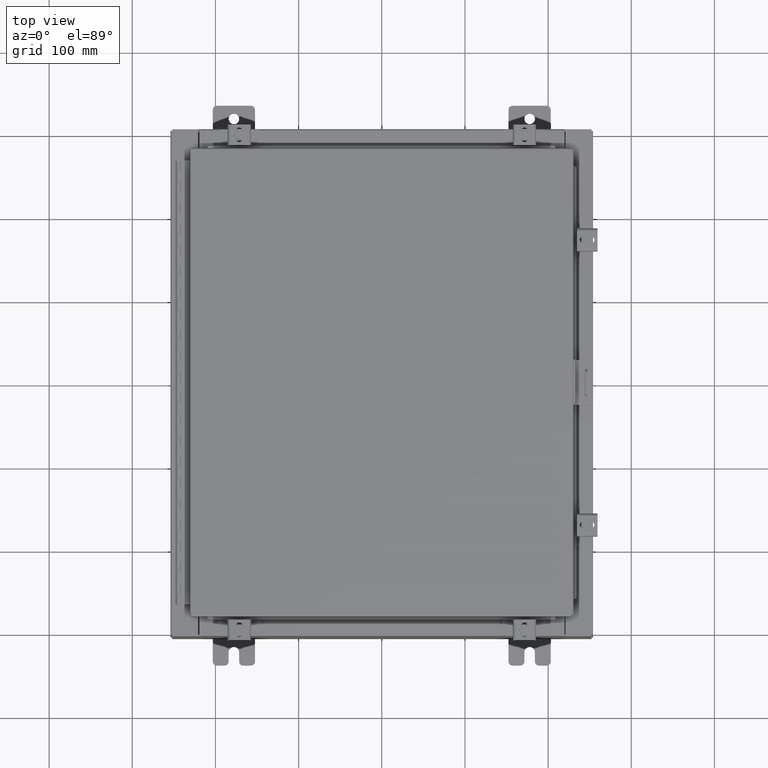
[diagram: clean part render]
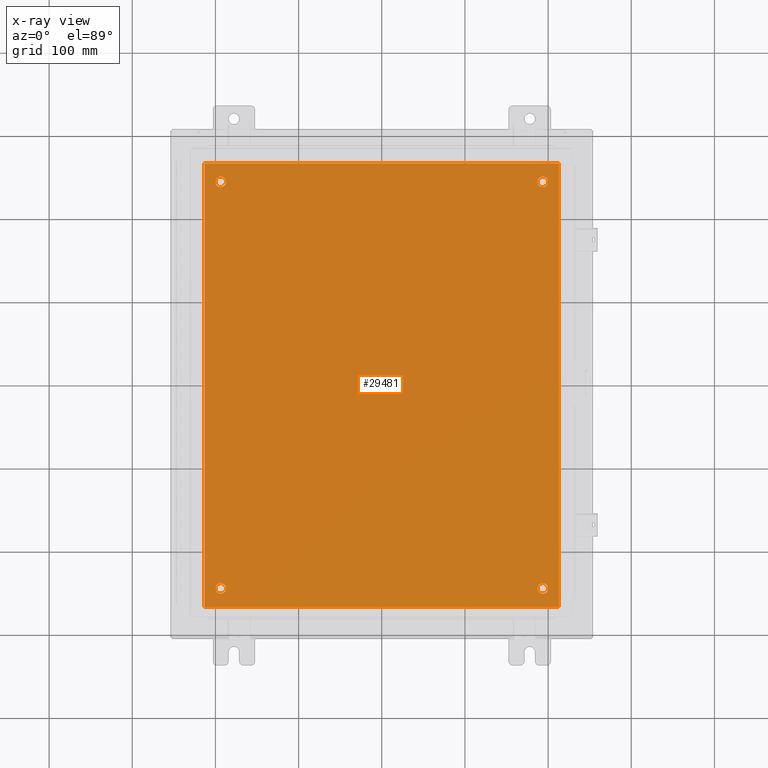
[diagram: x-ray — body ghosted, one internal face saturated and labeled with its STEP entity id]
A machine part, top view, then the same camera in x-ray: the body is ghosted and one INTERNAL B-rep face — a face not visible from any outside direction — is saturated and labeled: STEP entity #29481.
In plain terms, the highlighted planar face has unit normal (0, 0, -1).
Its self-contained STEP definition (entity closure, byte-faithful):
#547 = FACE_BOUND ( 'NONE', #3394, .T. ) ;
#1246 = PLANE ( 'NONE',  #13418 ) ;
#1336 = ORIENTED_EDGE ( 'NONE', *, *, #13790, .F. ) ;
#1374 = AXIS2_PLACEMENT_3D ( 'NONE', #28744, #13482, #31301 ) ;
#2328 = CARTESIAN_POINT ( 'NONE',  ( -7.625000000000004400, 9.625000000000001800, -0.1040000000000000400 ) ) ;
#2372 = CARTESIAN_POINT ( 'NONE',  ( 7.375000000000005300, -9.625000000000001800, -0.1040000000000000400 ) ) ;
#2544 = DIRECTION ( 'NONE',  ( -0.0000000000000000000, -0.0000000000000000000, 1.000000000000000000 ) ) ;
#3394 = EDGE_LOOP ( 'NONE', ( #8944, #23170 ) ) ;
#3687 = CARTESIAN_POINT ( 'NONE',  ( 0.0000000000000000000, 0.0000000000000000000, -0.1040000000000000400 ) ) ;
#3788 = DIRECTION ( 'NONE',  ( -1.000000000000000000, 0.0000000000000000000, -0.0000000000000000000 ) ) ;
#3878 = EDGE_CURVE ( 'NONE', #5645, #16554, #30451, .T. ) ;
#3926 = CARTESIAN_POINT ( 'NONE',  ( -8.383000000000002700, -10.50000000000000000, -0.1039999999999997600 ) ) ;
#4777 = CARTESIAN_POINT ( 'NONE',  ( -8.383000000000002700, 10.50000000000000200, -0.1039999999999997600 ) ) ;
#4885 = DIRECTION ( 'NONE',  ( -1.000000000000000000, 0.0000000000000000000, 0.0000000000000000000 ) ) ;
#5252 = EDGE_CURVE ( 'NONE', #5933, #9729, #12449, .T. ) ;
#5645 = VERTEX_POINT ( 'NONE', #11810 ) ;
#5715 = CIRCLE ( 'NONE', #24928, 0.2499999999999998100 ) ;
#5933 = VERTEX_POINT ( 'NONE', #10941 ) ;
#6685 = DIRECTION ( 'NONE',  ( -0.0000000000000000000, -0.0000000000000000000, 1.000000000000000000 ) ) ;
#6854 = AXIS2_PLACEMENT_3D ( 'NONE', #23687, #8474, #26271 ) ;
#7285 = FACE_BOUND ( 'NONE', #17812, .T. ) ;
#7425 = VERTEX_POINT ( 'NONE', #13039 ) ;
#8418 = EDGE_CURVE ( 'NONE', #20146, #19325, #11082, .T. ) ;
#8474 = DIRECTION ( 'NONE',  ( -0.0000000000000000000, -0.0000000000000000000, 1.000000000000000000 ) ) ;
#8578 = AXIS2_PLACEMENT_3D ( 'NONE', #17758, #2544, #20300 ) ;
#8638 = VECTOR ( 'NONE', #20438, 39.37007874015748100 ) ;
#8675 = CARTESIAN_POINT ( 'NONE',  ( -7.625000000000004400, -9.625000000000001800, -0.1040000000000000400 ) ) ;
#8944 = ORIENTED_EDGE ( 'NONE', *, *, #16592, .T. ) ;
#9069 = CARTESIAN_POINT ( 'NONE',  ( -7.625000000000004400, -9.625000000000001800, -0.1040000000000000400 ) ) ;
#9129 = DIRECTION ( 'NONE',  ( -0.0000000000000000000, -0.0000000000000000000, 1.000000000000000000 ) ) ;
#9665 = EDGE_LOOP ( 'NONE', ( #19682, #17057 ) ) ;
#9729 = VERTEX_POINT ( 'NONE', #2372 ) ;
#10376 = EDGE_CURVE ( 'NONE', #16554, #5645, #26922, .T. ) ;
#10941 = CARTESIAN_POINT ( 'NONE',  ( 7.875000000000002700, -9.625000000000001800, -0.1040000000000000400 ) ) ;
#11082 = LINE ( 'NONE', #11848, #30580 ) ;
#11224 = DIRECTION ( 'NONE',  ( -1.000000000000000000, 0.0000000000000000000, 0.0000000000000000000 ) ) ;
#11522 = ORIENTED_EDGE ( 'NONE', *, *, #3878, .T. ) ;
#11596 = DIRECTION ( 'NONE',  ( -1.000000000000000000, 0.0000000000000000000, 0.0000000000000000000 ) ) ;
#11810 = CARTESIAN_POINT ( 'NONE',  ( -7.375000000000004400, -9.625000000000001800, -0.1040000000000000400 ) ) ;
#11848 = CARTESIAN_POINT ( 'NONE',  ( -8.383000000000002700, 10.50000000000000400, -0.1039999999999997600 ) ) ;
#11945 = CIRCLE ( 'NONE', #6854, 0.2499999999999987000 ) ;
#12226 = DIRECTION ( 'NONE',  ( 0.0000000000000000000, 1.000000000000000000, 0.0000000000000000000 ) ) ;
#12382 = AXIS2_PLACEMENT_3D ( 'NONE', #2328, #20090, #4885 ) ;
#12449 = CIRCLE ( 'NONE', #8578, 0.2499999999999987000 ) ;
#12555 = EDGE_CURVE ( 'NONE', #7425, #21899, #26765, .T. ) ;
#12625 = VECTOR ( 'NONE', #12226, 39.37007874015748100 ) ;
#13039 = CARTESIAN_POINT ( 'NONE',  ( -7.375000000000004400, 9.625000000000001800, -0.1040000000000000400 ) ) ;
#13418 = AXIS2_PLACEMENT_3D ( 'NONE', #3687, #19001, #3788 ) ;
#13482 = DIRECTION ( 'NONE',  ( -0.0000000000000000000, -0.0000000000000000000, 1.000000000000000000 ) ) ;
#13790 = EDGE_CURVE ( 'NONE', #19325, #17946, #32253, .T. ) ;
#14481 = CARTESIAN_POINT ( 'NONE',  ( 8.382999999999999100, 10.50000000000000200, -0.1040000000000000400 ) ) ;
#14730 = CARTESIAN_POINT ( 'NONE',  ( 8.382999999999999100, -10.50000000000000000, -0.1040000000000000400 ) ) ;
#14780 = CARTESIAN_POINT ( 'NONE',  ( 8.382999999999999100, -10.50000000000000200, -0.1039999999999997600 ) ) ;
#15333 = CARTESIAN_POINT ( 'NONE',  ( -8.500000000000001800, 10.50000000000000200, -0.1040000000000000400 ) ) ;
#16554 = VERTEX_POINT ( 'NONE', #25947 ) ;
#16592 = EDGE_CURVE ( 'NONE', #23618, #25790, #24552, .T. ) ;
#16775 = ORIENTED_EDGE ( 'NONE', *, *, #10376, .T. ) ;
#17057 = ORIENTED_EDGE ( 'NONE', *, *, #29041, .T. ) ;
#17449 = AXIS2_PLACEMENT_3D ( 'NONE', #8675, #26473, #11224 ) ;
#17758 = CARTESIAN_POINT ( 'NONE',  ( 7.625000000000004400, -9.625000000000001800, -0.1040000000000000400 ) ) ;
#17812 = EDGE_LOOP ( 'NONE', ( #11522, #16775 ) ) ;
#17946 = VERTEX_POINT ( 'NONE', #14730 ) ;
#19001 = DIRECTION ( 'NONE',  ( 0.0000000000000000000, 0.0000000000000000000, -1.000000000000000000 ) ) ;
#19325 = VERTEX_POINT ( 'NONE', #3926 ) ;
#19376 = LINE ( 'NONE', #14780, #12625 ) ;
#19490 = ORIENTED_EDGE ( 'NONE', *, *, #8418, .F. ) ;
#19682 = ORIENTED_EDGE ( 'NONE', *, *, #12555, .T. ) ;
#20090 = DIRECTION ( 'NONE',  ( -0.0000000000000000000, -0.0000000000000000000, 1.000000000000000000 ) ) ;
#20146 = VERTEX_POINT ( 'NONE', #4777 ) ;
#20300 = DIRECTION ( 'NONE',  ( -1.000000000000000000, 0.0000000000000000000, 0.0000000000000000000 ) ) ;
#20438 = DIRECTION ( 'NONE',  ( -1.000000000000000000, -0.0000000000000000000, -0.0000000000000000000 ) ) ;
#20730 = ORIENTED_EDGE ( 'NONE', *, *, #30744, .T. ) ;
#21380 = LINE ( 'NONE', #15333, #8638 ) ;
#21600 = FACE_BOUND ( 'NONE', #9665, .T. ) ;
#21899 = VERTEX_POINT ( 'NONE', #31858 ) ;
#21903 = CARTESIAN_POINT ( 'NONE',  ( -7.625000000000004400, 9.625000000000001800, -0.1040000000000000400 ) ) ;
#21968 = VERTEX_POINT ( 'NONE', #14481 ) ;
#23170 = ORIENTED_EDGE ( 'NONE', *, *, #30906, .T. ) ;
#23618 = VERTEX_POINT ( 'NONE', #31749 ) ;
#23687 = CARTESIAN_POINT ( 'NONE',  ( 7.625000000000004400, -9.625000000000001800, -0.1040000000000000400 ) ) ;
#24185 = ORIENTED_EDGE ( 'NONE', *, *, #5252, .T. ) ;
#24335 = CARTESIAN_POINT ( 'NONE',  ( 7.625000000000004400, 9.625000000000001800, -0.1040000000000000400 ) ) ;
#24450 = DIRECTION ( 'NONE',  ( -1.000000000000000000, 0.0000000000000000000, 0.0000000000000000000 ) ) ;
#24552 = CIRCLE ( 'NONE', #1374, 0.2499999999999987000 ) ;
#24578 = EDGE_CURVE ( 'NONE', #17946, #21968, #19376, .T. ) ;
#24730 = EDGE_CURVE ( 'NONE', #21968, #20146, #21380, .T. ) ;
#24928 = AXIS2_PLACEMENT_3D ( 'NONE', #21903, #6685, #24450 ) ;
#25170 = CARTESIAN_POINT ( 'NONE',  ( 7.375000000000005300, 9.625000000000001800, -0.1040000000000000400 ) ) ;
#25238 = ORIENTED_EDGE ( 'NONE', *, *, #24730, .F. ) ;
#25474 = VECTOR ( 'NONE', #32040, 39.37007874015748100 ) ;
#25606 = AXIS2_PLACEMENT_3D ( 'NONE', #24335, #9129, #26924 ) ;
#25790 = VERTEX_POINT ( 'NONE', #25170 ) ;
#25947 = CARTESIAN_POINT ( 'NONE',  ( -7.875000000000003600, -9.625000000000001800, -0.1040000000000000400 ) ) ;
#26271 = DIRECTION ( 'NONE',  ( -1.000000000000000000, 0.0000000000000000000, 0.0000000000000000000 ) ) ;
#26473 = DIRECTION ( 'NONE',  ( -0.0000000000000000000, -0.0000000000000000000, 1.000000000000000000 ) ) ;
#26514 = EDGE_LOOP ( 'NONE', ( #24185, #20730 ) ) ;
#26674 = CIRCLE ( 'NONE', #25606, 0.2499999999999987000 ) ;
#26765 = CIRCLE ( 'NONE', #12382, 0.2499999999999998100 ) ;
#26773 = FACE_OUTER_BOUND ( 'NONE', #29727, .T. ) ;
#26867 = DIRECTION ( 'NONE',  ( -0.0000000000000000000, -0.0000000000000000000, 1.000000000000000000 ) ) ;
#26922 = CIRCLE ( 'NONE', #17449, 0.2499999999999998100 ) ;
#26923 = CARTESIAN_POINT ( 'NONE',  ( -8.500000000000001800, -10.50000000000000000, -0.1040000000000000400 ) ) ;
#26924 = DIRECTION ( 'NONE',  ( -1.000000000000000000, 0.0000000000000000000, 0.0000000000000000000 ) ) ;
#27115 = DIRECTION ( 'NONE',  ( 0.0000000000000000000, -1.000000000000000000, 0.0000000000000000000 ) ) ;
#27581 = FACE_BOUND ( 'NONE', #26514, .T. ) ;
#27734 = AXIS2_PLACEMENT_3D ( 'NONE', #9069, #26867, #11596 ) ;
#28744 = CARTESIAN_POINT ( 'NONE',  ( 7.625000000000004400, 9.625000000000001800, -0.1040000000000000400 ) ) ;
#28936 = ORIENTED_EDGE ( 'NONE', *, *, #24578, .F. ) ;
#29041 = EDGE_CURVE ( 'NONE', #21899, #7425, #5715, .T. ) ;
#29481 = ADVANCED_FACE ( 'NONE', ( #7285, #27581, #547, #21600, #26773 ), #1246, .T. ) ;
#29727 = EDGE_LOOP ( 'NONE', ( #1336, #19490, #25238, #28936 ) ) ;
#30451 = CIRCLE ( 'NONE', #27734, 0.2499999999999998100 ) ;
#30580 = VECTOR ( 'NONE', #27115, 39.37007874015748100 ) ;
#30744 = EDGE_CURVE ( 'NONE', #9729, #5933, #11945, .T. ) ;
#30906 = EDGE_CURVE ( 'NONE', #25790, #23618, #26674, .T. ) ;
#31301 = DIRECTION ( 'NONE',  ( -1.000000000000000000, 0.0000000000000000000, 0.0000000000000000000 ) ) ;
#31749 = CARTESIAN_POINT ( 'NONE',  ( 7.875000000000002700, 9.625000000000001800, -0.1040000000000000400 ) ) ;
#31858 = CARTESIAN_POINT ( 'NONE',  ( -7.875000000000003600, 9.625000000000001800, -0.1040000000000000400 ) ) ;
#32040 = DIRECTION ( 'NONE',  ( 1.000000000000000000, 0.0000000000000000000, 0.0000000000000000000 ) ) ;
#32253 = LINE ( 'NONE', #26923, #25474 ) ;